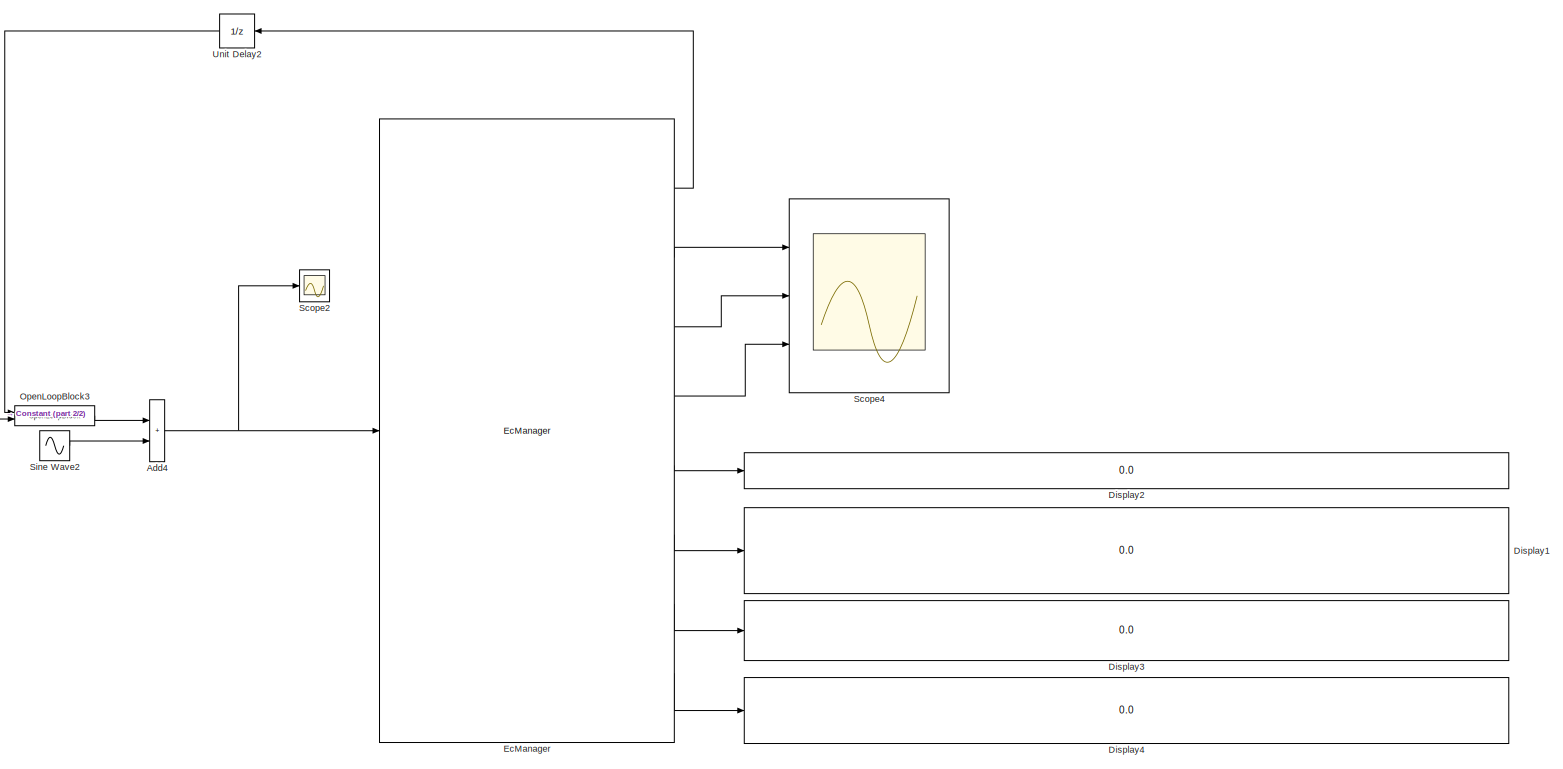
[diagram: root canvas - part 1/2, most of the canvas]
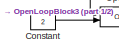
[diagram: root canvas - part 2/2, middle left region]
MODEL slx_400abcdb62b3
KIND model
CONFIG AbsTol = auto
CONFIG EnableMultiTasking = off
CONFIG FixedStep = 0.05
CONFIG MaxStep = auto
CONFIG MinStep = auto
CONFIG RelTol = 1e-3
CONFIG SampleTimeConstraint = Unconstrained
CONFIG SolverName = ode3
CONFIG StartTime = 0.0
CONFIG StopTime = inf
BLOCK [Sum] Add4
  IconShape = rectangular
  Ports = [2, 1]
BLOCK [Constant] Constant
  Value = 2
BLOCK [Display] Display1
  Decimation = 1
  Ports = [1]
BLOCK [Display] Display2
  Decimation = 1
  Ports = [1]
BLOCK [Display] Display3
  Decimation = 1
  Ports = [1]
BLOCK [Display] Display4
  Decimation = 1
  Ports = [1]
BLOCK [Reference] EcManager  REF=EcBlockToolbox/EcManager
  Ports = [1, 8]
  SourceBlock = EcBlockToolbox/EcManager
  SourceProductName = EcBlock Toolbox
BLOCK [Reference] OpenLoopBlock3  REF=Utilities/OpenLoopBlock
  Ports = [2, 1]
  SourceBlock = Utilities/OpenLoopBlock
  SourceProductName = XBotBlock Toolbox
  SourceType = SubSystem
BLOCK [Scope] Scope2
  Floating = off
  NumInputPorts = 1
  Ports = [1]
  ScopeSpecificationString = Simulink.scopes.TimeScopeBlockCfg('CurrentConfiguration', extmgr.ConfigurationSet(extmgr.Configuration('Core','General UI',true),extmgr.Configuration('Core','Source UI',true),extmgr.Configuration('Sources','WiredSimulink',true,'DataLoggingVariableName','ScopeData3'),extmgr.Configuration('Visuals','Time Domain',true,'SerializedDisplays',{struct('MinYLimReal','-1.37497','MaxYLimReal','12.37476','YLa...<+1586ch>
BLOCK [Scope] Scope4
  Floating = off
  NumInputPorts = 3
  Ports = [3]
  ScopeSpecificationString = Simulink.scopes.TimeScopeBlockCfg('CurrentConfiguration', extmgr.ConfigurationSet(extmgr.Configuration('Core','General UI',true),extmgr.Configuration('Core','Source UI',true),extmgr.Configuration('Sources','WiredSimulink',true,'DataLoggingVariableName','ScopeData1'),extmgr.Configuration('Visuals','Time Domain',true,'SerializedDisplays',{struct('MinYLimReal','-6.24956','MaxYLimReal','6.24991','YLab...<+3599ch>
BLOCK [Sin] Sine Wave2
  Amplitude = 5
  Ports = [0, 1]
  SampleTime = 0
BLOCK [UnitDelay] Unit Delay2
  HasFrameUpgradeWarning = on
  NameLocation = top
  SampleTime = -1
NET Add4:1 -> EcManager:1, Scope2:1
LINE Constant:1 -> OpenLoopBlock3:2
LINE EcManager:1 -> Unit Delay2:1
LINE EcManager:2 -> Scope4:1
LINE EcManager:3 -> Scope4:2
LINE EcManager:4 -> Scope4:3
LINE EcManager:5 -> Display2:1
LINE EcManager:6 -> Display1:1
LINE EcManager:7 -> Display3:1
LINE EcManager:8 -> Display4:1
LINE OpenLoopBlock3:1 -> Add4:1
LINE Sine Wave2:1 -> Add4:2
LINE Unit Delay2:1 -> OpenLoopBlock3:1
note: NET lines group one-source signal fan-out (src -> all destinations, sorted); 1:1 wires keep LINE
